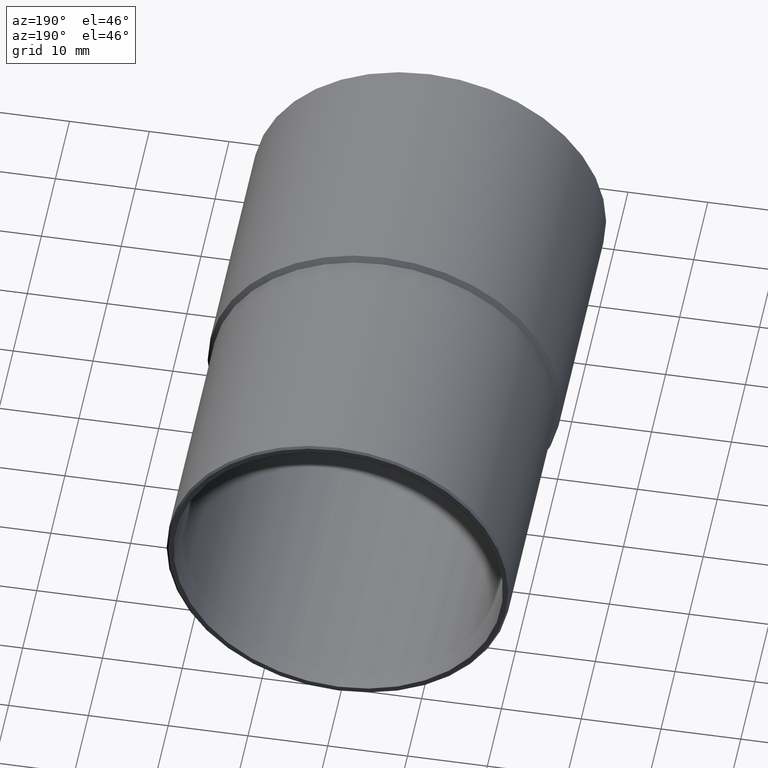
[diagram: clean part render]
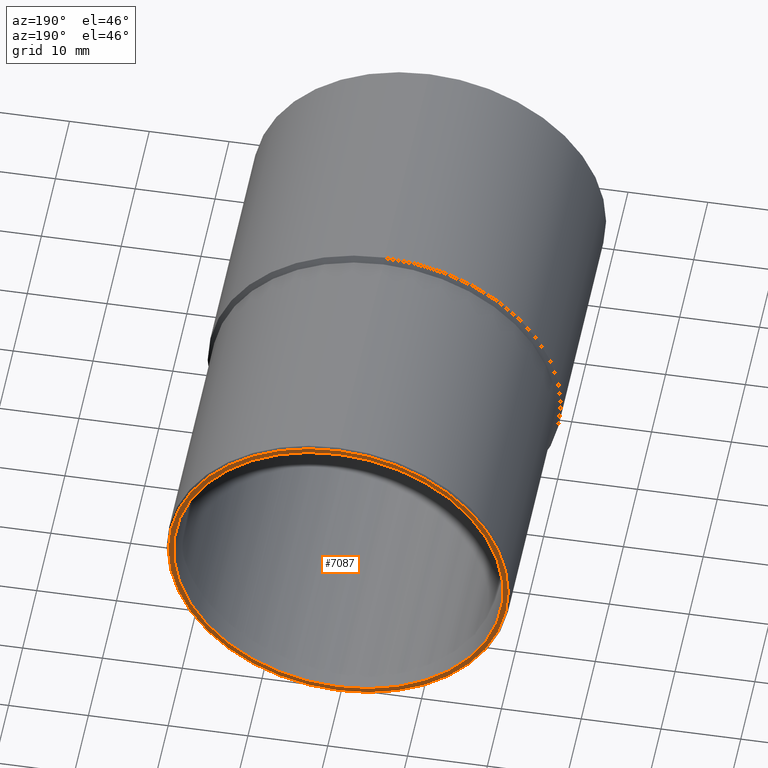
[diagram: same view with one face highlighted and labeled with its STEP entity id]
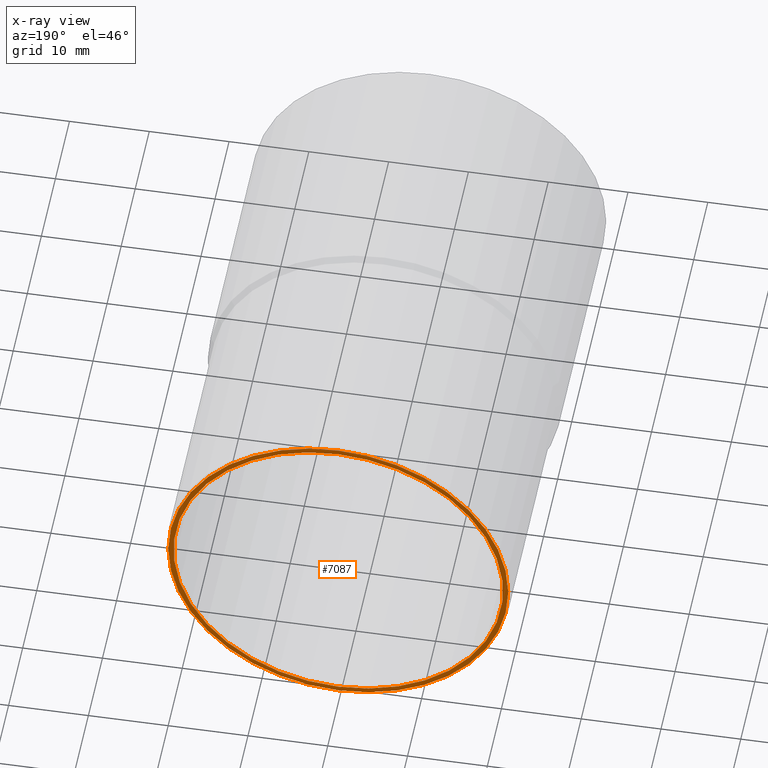
[diagram: x-ray of the same camera — body ghosted, the highlighted face saturated]
A machine part, auxiliary view. The second image highlights one B-rep face of the part: STEP entity #7087.
The next image is the same camera in x-ray: the body ghosted, the highlighted face saturated — about 0% of this face is hidden behind the body in this view.
In plain terms, the highlighted planar face has unit normal (0, 1, 0).
Its self-contained STEP definition (entity closure, byte-faithful):
#149 = CARTESIAN_POINT ( 'NONE',  ( 0.0000000000000000000, 32.50000000000000000, 0.0000000000000000000 ) ) ;
#165 = CIRCLE ( 'NONE', #6518, 20.64999999999999900 ) ;
#274 = VERTEX_POINT ( 'NONE', #8781 ) ;
#290 = AXIS2_PLACEMENT_3D ( 'NONE', #149, #5976, #991 ) ;
#316 = CARTESIAN_POINT ( 'NONE',  ( 0.0000000000000000000, 32.50000000000000000, -20.64999999999999900 ) ) ;
#991 = DIRECTION ( 'NONE',  ( 0.0000000000000000000, 0.0000000000000000000, -1.000000000000000000 ) ) ;
#1448 = CIRCLE ( 'NONE', #3849, 21.30000000000000100 ) ;
#1515 = CARTESIAN_POINT ( 'NONE',  ( 0.0000000000000000000, 32.50000000000000000, 0.0000000000000000000 ) ) ;
#1835 = FACE_OUTER_BOUND ( 'NONE', #4161, .T. ) ;
#2367 = DIRECTION ( 'NONE',  ( 0.0000000000000000000, 0.0000000000000000000, -1.000000000000000000 ) ) ;
#2745 = PLANE ( 'NONE',  #3078 ) ;
#3078 = AXIS2_PLACEMENT_3D ( 'NONE', #5225, #3589, #9399 ) ;
#3138 = DIRECTION ( 'NONE',  ( 0.0000000000000000000, 1.000000000000000000, 0.0000000000000000000 ) ) ;
#3143 = ORIENTED_EDGE ( 'NONE', *, *, #9210, .T. ) ;
#3589 = DIRECTION ( 'NONE',  ( 0.0000000000000000000, 1.000000000000000000, 0.0000000000000000000 ) ) ;
#3677 = CIRCLE ( 'NONE', #4854, 21.30000000000000100 ) ;
#3839 = DIRECTION ( 'NONE',  ( 0.0000000000000000000, 1.000000000000000000, 0.0000000000000000000 ) ) ;
#3849 = AXIS2_PLACEMENT_3D ( 'NONE', #8844, #3839, #9660 ) ;
#3946 = ORIENTED_EDGE ( 'NONE', *, *, #6145, .T. ) ;
#4073 = CIRCLE ( 'NONE', #290, 20.64999999999999900 ) ;
#4161 = EDGE_LOOP ( 'NONE', ( #9022, #3143 ) ) ;
#4854 = AXIS2_PLACEMENT_3D ( 'NONE', #8159, #3138, #8982 ) ;
#5225 = CARTESIAN_POINT ( 'NONE',  ( 0.0000000000000000000, 32.50000000000000000, 0.0000000000000000000 ) ) ;
#5976 = DIRECTION ( 'NONE',  ( 0.0000000000000000000, -1.000000000000000000, 0.0000000000000000000 ) ) ;
#6145 = EDGE_CURVE ( 'NONE', #7330, #274, #165, .T. ) ;
#6518 = AXIS2_PLACEMENT_3D ( 'NONE', #1515, #7400, #2367 ) ;
#6743 = CARTESIAN_POINT ( 'NONE',  ( 0.0000000000000000000, 32.50000000000000000, -21.30000000000000100 ) ) ;
#6774 = EDGE_CURVE ( 'NONE', #7835, #8825, #1448, .T. ) ;
#7026 = EDGE_CURVE ( 'NONE', #274, #7330, #4073, .T. ) ;
#7087 = ADVANCED_FACE ( 'NONE', ( #1835, #8259 ), #2745, .T. ) ;
#7330 = VERTEX_POINT ( 'NONE', #316 ) ;
#7400 = DIRECTION ( 'NONE',  ( 0.0000000000000000000, -1.000000000000000000, 0.0000000000000000000 ) ) ;
#7835 = VERTEX_POINT ( 'NONE', #6743 ) ;
#8159 = CARTESIAN_POINT ( 'NONE',  ( 0.0000000000000000000, 32.50000000000000000, 0.0000000000000000000 ) ) ;
#8259 = FACE_BOUND ( 'NONE', #9143, .T. ) ;
#8665 = ORIENTED_EDGE ( 'NONE', *, *, #7026, .T. ) ;
#8781 = CARTESIAN_POINT ( 'NONE',  ( 2.528895640239284100E-015, 32.50000000000000000, 20.64999999999999900 ) ) ;
#8825 = VERTEX_POINT ( 'NONE', #9268 ) ;
#8844 = CARTESIAN_POINT ( 'NONE',  ( 0.0000000000000000000, 32.50000000000000000, 0.0000000000000000000 ) ) ;
#8982 = DIRECTION ( 'NONE',  ( 0.0000000000000000000, 0.0000000000000000000, 1.000000000000000000 ) ) ;
#9022 = ORIENTED_EDGE ( 'NONE', *, *, #6774, .T. ) ;
#9143 = EDGE_LOOP ( 'NONE', ( #3946, #8665 ) ) ;
#9210 = EDGE_CURVE ( 'NONE', #8825, #7835, #3677, .T. ) ;
#9268 = CARTESIAN_POINT ( 'NONE',  ( 2.623805767173204400E-015, 32.50000000000000000, 21.30000000000000100 ) ) ;
#9399 = DIRECTION ( 'NONE',  ( 0.0000000000000000000, -0.0000000000000000000, 1.000000000000000000 ) ) ;
#9660 = DIRECTION ( 'NONE',  ( 0.0000000000000000000, 0.0000000000000000000, 1.000000000000000000 ) ) ;